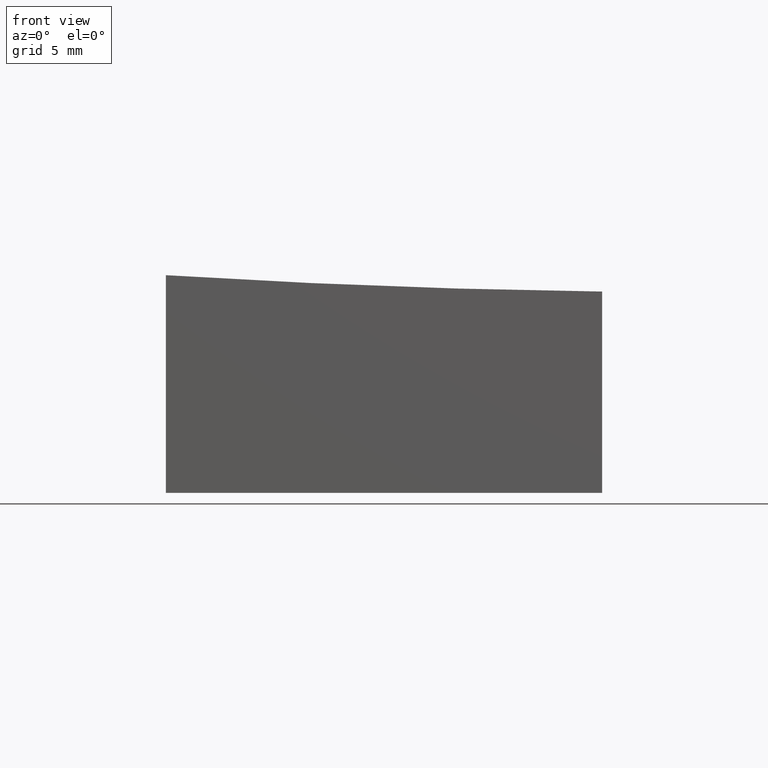
[diagram: clean part render]
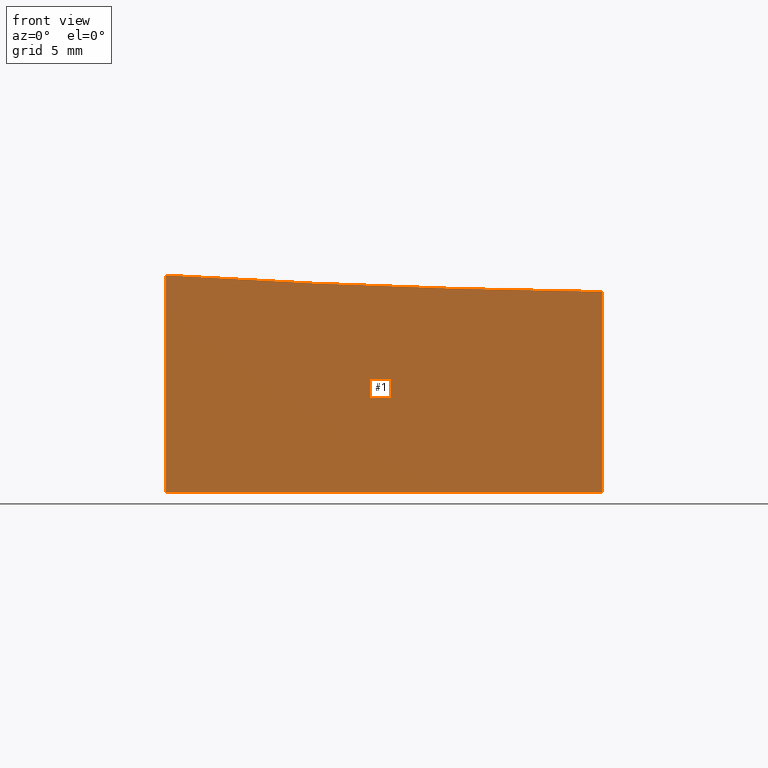
[diagram: same view with one face highlighted and labeled with its STEP entity id]
A machine part, front view. The second image highlights one B-rep face of the part: STEP entity #1.
In plain terms, the highlighted planar face has unit normal (-0, 1, 0).
Its self-contained STEP definition (entity closure, byte-faithful):
#1 = ADVANCED_FACE ( 'NONE', ( #100 ), #181, .F. ) ;
#2 = CARTESIAN_POINT ( 'NONE',  ( -9.999999999999996447, -12.50000000000000355, -0.02224248780913207213 ) ) ;
#4 = DIRECTION ( 'NONE',  ( -0.000000000000000000, -0.000000000000000000, -1.000000000000000000 ) ) ;
#8 = LINE ( 'NONE', #67, #43 ) ;
#12 = CARTESIAN_POINT ( 'NONE',  ( -9.999999999999998224, -12.50000000000000355, -10.00000000000000000 ) ) ;
#23 = DIRECTION ( 'NONE',  ( 1.000000000000000000, 1.734723475976807094E-16, -0.000000000000000000 ) ) ;
#24 = AXIS2_PLACEMENT_3D ( 'NONE', #224, #64, #233 ) ;
#34 = ORIENTED_EDGE ( 'NONE', *, *, #208, .T. ) ;
#43 = VECTOR ( 'NONE', #23, 1000.000000000000000 ) ;
#44 = ORIENTED_EDGE ( 'NONE', *, *, #51, .T. ) ;
#50 = CARTESIAN_POINT ( 'NONE',  ( 10.00000000000000178, -12.50000000000000000, 10.00000000000000000 ) ) ;
#51 = EDGE_CURVE ( 'NONE', #158, #167, #244, .T. ) ;
#52 = DIRECTION ( 'NONE',  ( -1.734723475976807094E-16, 1.000000000000000000, 0.000000000000000000 ) ) ;
#56 = DIRECTION ( 'NONE',  ( -0.000000000000000000, -0.000000000000000000, -1.000000000000000000 ) ) ;
#64 = DIRECTION ( 'NONE',  ( -1.734723475976807094E-16, 1.000000000000000000, 0.000000000000000000 ) ) ;
#67 = CARTESIAN_POINT ( 'NONE',  ( 10.00000000000000178, -12.50000000000000000, -10.00000000000000000 ) ) ;
#75 = ORIENTED_EDGE ( 'NONE', *, *, #106, .T. ) ;
#98 = LINE ( 'NONE', #50, #126 ) ;
#100 = FACE_OUTER_BOUND ( 'NONE', #136, .T. ) ;
#106 = EDGE_CURVE ( 'NONE', #175, #158, #149, .T. ) ;
#117 = CARTESIAN_POINT ( 'NONE',  ( 10.00000000000000178, -12.50000000000000000, -0.7733733004237630659 ) ) ;
#126 = VECTOR ( 'NONE', #4, 1000.000000000000000 ) ;
#136 = EDGE_LOOP ( 'NONE', ( #264, #75, #44, #34 ) ) ;
#149 = CIRCLE ( 'NONE', #24, 399.8046397929868476 ) ;
#158 = VERTEX_POINT ( 'NONE', #2 ) ;
#159 = CARTESIAN_POINT ( 'NONE',  ( -9.999999999999998224, -12.50000000000000355, 10.00000000000000000 ) ) ;
#165 = CARTESIAN_POINT ( 'NONE',  ( 10.00000000000000178, -12.50000000000000000, 10.00000000000000000 ) ) ;
#167 = VERTEX_POINT ( 'NONE', #12 ) ;
#175 = VERTEX_POINT ( 'NONE', #117 ) ;
#181 = PLANE ( 'NONE',  #234 ) ;
#189 = VECTOR ( 'NONE', #56, 1000.000000000000000 ) ;
#208 = EDGE_CURVE ( 'NONE', #167, #267, #8, .T. ) ;
#224 = CARTESIAN_POINT ( 'NONE',  ( 15.00000000000005329, -12.49999999999999822, 399.0000000000000000 ) ) ;
#233 = DIRECTION ( 'NONE',  ( -1.000000000000000000, -1.735571129814823690E-16, 0.000000000000000000 ) ) ;
#234 = AXIS2_PLACEMENT_3D ( 'NONE', #165, #52, #263 ) ;
#236 = EDGE_CURVE ( 'NONE', #175, #267, #98, .T. ) ;
#243 = CARTESIAN_POINT ( 'NONE',  ( 10.00000000000000178, -12.50000000000000000, -10.00000000000000000 ) ) ;
#244 = LINE ( 'NONE', #159, #189 ) ;
#263 = DIRECTION ( 'NONE',  ( -1.000000000000000000, -1.734723475976807094E-16, 0.000000000000000000 ) ) ;
#264 = ORIENTED_EDGE ( 'NONE', *, *, #236, .F. ) ;
#267 = VERTEX_POINT ( 'NONE', #243 ) ;